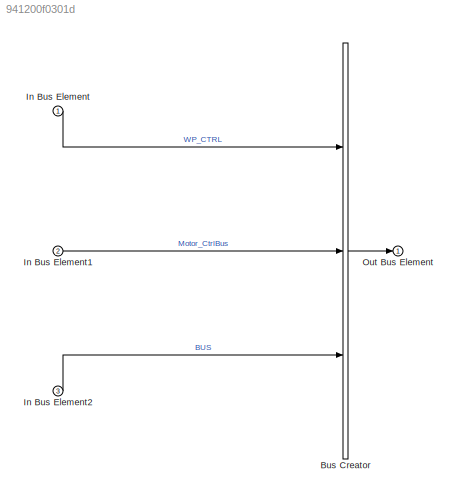
MODEL slx_941200f0301d
KIND model
CONFIG AbsTol = auto
CONFIG EnableMultiTasking = off
CONFIG FixedStep = auto
CONFIG MaxStep = auto
CONFIG MinStep = auto
CONFIG RelTol = 1e-3
CONFIG SampleTimeConstraint = Unconstrained
CONFIG Solver = VariableStepAuto
CONFIG SolverName = VariableStepAuto
CONFIG StartTime = 0.0
CONFIG StopTime = 10.0
BLOCK [BusCreator] Bus Creator
  DisplayOption = bar
  InheritFromInputs = on
  Inputs = 3
  Ports = [3, 1]
BLOCK [Inport] In Bus Element
  IconDisplay = Port number
BLOCK [Inport] In Bus Element1
  IconDisplay = Port number
  Port = 2
BLOCK [Inport] In Bus Element2
  IconDisplay = Port number
  Port = 3
BLOCK [Outport] Out Bus Element
  IconDisplay = Port number
LINE Bus Creator:1 -> Out Bus Element:1
LINE In Bus Element1:1 -> Bus Creator:2
LINE In Bus Element2:1 -> Bus Creator:3
LINE In Bus Element:1 -> Bus Creator:1
